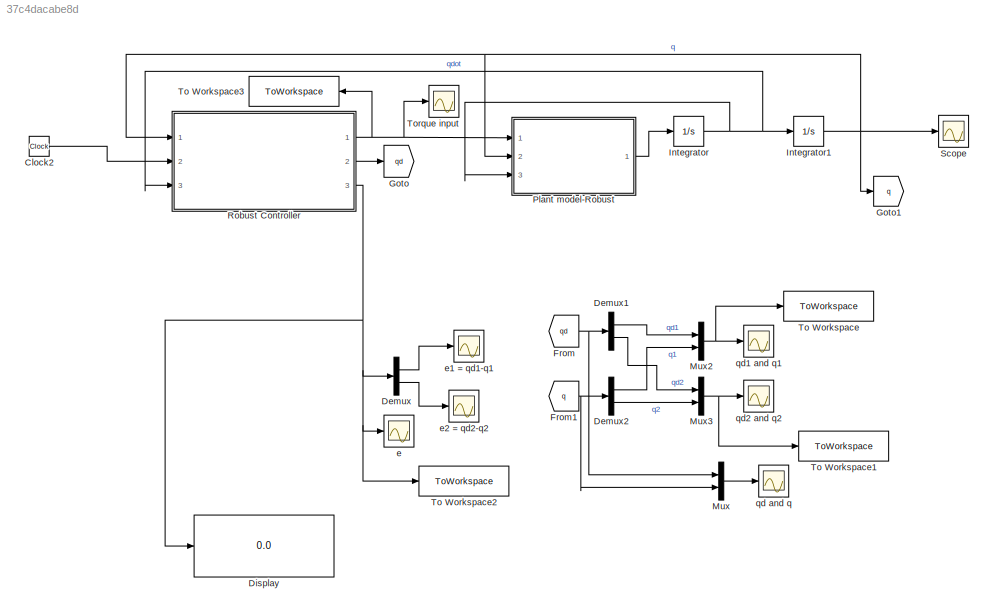
MODEL slx_37c4dacabe8d
KIND model
CONFIG AbsTol = auto
CONFIG EnableMultiTasking = off
CONFIG FixedStep = auto
CONFIG MaxStep = auto
CONFIG MinStep = auto
CONFIG RelTol = 1e-3
CONFIG SampleTimeConstraint = Unconstrained
CONFIG Solver = VariableStepAuto
CONFIG SolverName = VariableStepAuto
CONFIG StartTime = 0.0
CONFIG StopTime = 100
BLOCK [Clock] Clock2
BLOCK [Demux] Demux
  Outputs = 2
  Ports = [1, 2]
BLOCK [Demux] Demux1
  Outputs = 2
  Ports = [1, 2]
BLOCK [Demux] Demux2
  Outputs = 2
  Ports = [1, 2]
BLOCK [Display] Display
  Decimation = 1
  Ports = [1]
BLOCK [From] From
  GotoTag = qd
BLOCK [From] From1
  GotoTag = q
BLOCK [Goto] Goto
  GotoTag = qd
BLOCK [Goto] Goto1
  GotoTag = q
BLOCK [Integrator] Integrator
  InitialCondition = zeros(2,1)
  Ports = [1, 1]
BLOCK [Integrator] Integrator1
  InitialCondition = zeros(2,1)
  Ports = [1, 1]
BLOCK [Mux] Mux
  DisplayOption = bar
  Inputs = 2
  Ports = [2, 1]
BLOCK [Mux] Mux2
  DisplayOption = bar
  Inputs = 2
  Ports = [2, 1]
BLOCK [Mux] Mux3
  DisplayOption = bar
  Inputs = 2
  Ports = [2, 1]
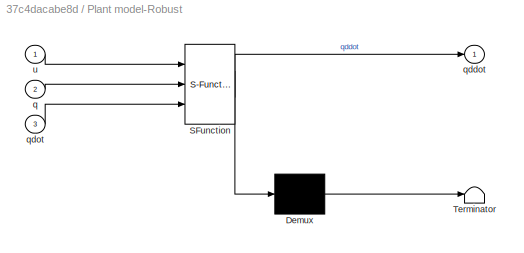
BLOCK [SubSystem] Plant model-Robust
  ErrorFcn = Stateflow.Translate.translate
  PermitHierarchicalResolution = ExplicitOnly
  Ports = [3, 1]
  RequestExecContextInheritance = off
  SFBlockType = MATLAB Function
  TreatAsAtomicUnit = on
BLOCK [Demux] Plant model-Robust/ Demux 
  Outputs = 1
  Ports = [1, 1]
BLOCK [S-Function] Plant model-Robust/ SFunction 
  EnableBusSupport = on
  FunctionName = sf_sfun
  PortCounts = [3 2]
  Ports = [3, 2]
  SFcnIsStateOwnerBlock = off
  SFunctionDeploymentMode = off
  Tag = Stateflow S-Function 2
BLOCK [Terminator] Plant model-Robust/ Terminator 
BLOCK [Inport] Plant model-Robust/q
  Port = 2
BLOCK [Outport] Plant model-Robust/qddot
BLOCK [Inport] Plant model-Robust/qdot
  Port = 3
BLOCK [Inport] Plant model-Robust/u
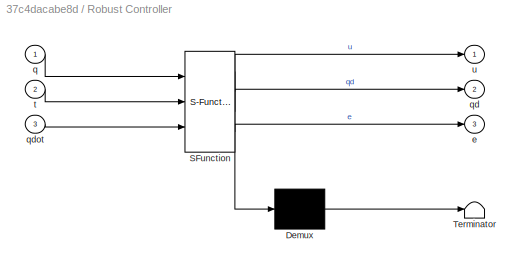
BLOCK [SubSystem] Robust Controller
  ErrorFcn = Stateflow.Translate.translate
  PermitHierarchicalResolution = ExplicitOnly
  Ports = [3, 3]
  RequestExecContextInheritance = off
  SFBlockType = MATLAB Function
  TreatAsAtomicUnit = on
BLOCK [Demux] Robust Controller/ Demux 
  Outputs = 1
  Ports = [1, 1]
BLOCK [S-Function] Robust Controller/ SFunction 
  EnableBusSupport = on
  FunctionName = sf_sfun
  PortCounts = [3 4]
  Ports = [3, 4]
  SFcnIsStateOwnerBlock = off
  SFunctionDeploymentMode = off
  Tag = Stateflow S-Function 1
BLOCK [Terminator] Robust Controller/ Terminator 
BLOCK [Outport] Robust Controller/e
  Port = 3
BLOCK [Inport] Robust Controller/q
BLOCK [Outport] Robust Controller/qd
  Port = 2
BLOCK [Inport] Robust Controller/qdot
  Port = 3
BLOCK [Inport] Robust Controller/t
  Port = 2
BLOCK [Outport] Robust Controller/u
BLOCK [Scope] Scope
  Floating = off
  NumInputPorts = 1
  Ports = [1]
  ScopeSpecificationString = Simulink.scopes.TimeScopeBlockCfg('CurrentConfiguration', extmgr.ConfigurationSet(extmgr.Configuration('Core','General UI',true),extmgr.Configuration('Core','Source UI',true),extmgr.Configuration('Sources','WiredSimulink',true),extmgr.Configuration('Visuals','Time Domain',true,'SerializedDisplays',{struct('MinYLimReal','-1.25166','MaxYLimReal','1.25236','YLabelReal','','MinYLimMag','0.00000','MaxY...<+1361ch>
BLOCK [ToWorkspace] To Workspace
  FixptAsFi = on
  MaxDataPoints = inf
  Ports = [1]
  SampleTime = -1
  SaveFormat = Timeseries
  VariableName = q1
BLOCK [ToWorkspace] To Workspace1
  FixptAsFi = on
  MaxDataPoints = inf
  Ports = [1]
  SampleTime = -1
  SaveFormat = Timeseries
  VariableName = q2
BLOCK [ToWorkspace] To Workspace2
  FixptAsFi = on
  MaxDataPoints = inf
  Ports = [1]
  SampleTime = -1
  SaveFormat = Timeseries
  VariableName = e
BLOCK [ToWorkspace] To Workspace3
  FixptAsFi = on
  MaxDataPoints = inf
  Ports = [1]
  SampleTime = -1
  SaveFormat = Timeseries
  VariableName = T
BLOCK [Scope] Torque input
  Floating = off
  NumInputPorts = 1
  Ports = [1]
  ScopeSpecificationString = Simulink.scopes.TimeScopeBlockCfg('CurrentConfiguration', extmgr.ConfigurationSet(extmgr.Configuration('Core','General UI',true),extmgr.Configuration('Core','Source UI',true),extmgr.Configuration('Sources','WiredSimulink',true,'DataLoggingVariableName','ScopeData3'),extmgr.Configuration('Visuals','Time Domain',true,'SerializedDisplays',{struct('MinYLimReal','-79.64572','MaxYLimReal','223.55909','Y...<+1816ch>
BLOCK [Scope] e
  Floating = off
  NumInputPorts = 1
  Ports = [1]
  ScopeSpecificationString = Simulink.scopes.TimeScopeBlockCfg('CurrentConfiguration', extmgr.ConfigurationSet(extmgr.Configuration('Core','General UI',true),extmgr.Configuration('Core','Source UI',true),extmgr.Configuration('Sources','WiredSimulink',true,'DataLoggingVariableName','ScopeData7'),extmgr.Configuration('Visuals','Time Domain',true,'SerializedDisplays',{struct('MinYLimReal','-0.21568','MaxYLimReal','1.13541','YLab...<+1811ch>
BLOCK [Scope] e1 = qd1-q1
  Floating = off
  NumInputPorts = 1
  Ports = [1]
  ScopeSpecificationString = Simulink.scopes.TimeScopeBlockCfg('CurrentConfiguration', extmgr.ConfigurationSet(extmgr.Configuration('Core','General UI',true),extmgr.Configuration('Core','Source UI',true),extmgr.Configuration('Sources','WiredSimulink',true,'DataLoggingVariableName','ScopeData1'),extmgr.Configuration('Visuals','Time Domain',true,'SerializedDisplays',{struct('MinYLimReal','-0.12956','MaxYLimReal','1.12584','YLab...<+1366ch>
BLOCK [Scope] e2 = qd2-q2
  Floating = off
  NumInputPorts = 1
  Ports = [1]
  ScopeSpecificationString = Simulink.scopes.TimeScopeBlockCfg('CurrentConfiguration', extmgr.ConfigurationSet(extmgr.Configuration('Core','General UI',true),extmgr.Configuration('Core','Source UI',true),extmgr.Configuration('Sources','WiredSimulink',true,'DataLoggingVariableName','ScopeData2'),extmgr.Configuration('Visuals','Time Domain',true,'SerializedDisplays',{struct('MinYLimReal','-0.21564','MaxYLimReal','1.13507','YLab...<+1366ch>
BLOCK [Scope] qd and q
  Floating = off
  NumInputPorts = 1
  Ports = [1]
  ScopeSpecificationString = Simulink.scopes.TimeScopeBlockCfg('CurrentConfiguration', extmgr.ConfigurationSet(extmgr.Configuration('Core','General UI',true),extmgr.Configuration('Core','Source UI',true),extmgr.Configuration('Sources','WiredSimulink',true,'DataLoggingVariableName','ScopeData6'),extmgr.Configuration('Visuals','Time Domain',true,'SerializedDisplays',{struct('MinYLimReal','-1.35527','MaxYLimReal','1.26286','YLab...<+1423ch>
BLOCK [Scope] qd1 and q1
  Floating = off
  NumInputPorts = 1
  Ports = [1]
  ScopeSpecificationString = Simulink.scopes.TimeScopeBlockCfg('CurrentConfiguration', extmgr.ConfigurationSet(extmgr.Configuration('Core','General UI',true,'FigureColor',[1 1 1]),extmgr.Configuration('Core','Source UI',true),extmgr.Configuration('Sources','WiredSimulink',true,'DataLoggingVariableName','ScopeData4'),extmgr.Configuration('Visuals','Time Domain',true,'SerializedDisplays',{struct('MinYLimReal','-1.25238','MaxYLi...<+1556ch>
BLOCK [Scope] qd2 and q2
  Floating = off
  NumInputPorts = 1
  Ports = [1]
  ScopeSpecificationString = Simulink.scopes.TimeScopeBlockCfg('CurrentConfiguration', extmgr.ConfigurationSet(extmgr.Configuration('Core','General UI',true),extmgr.Configuration('Core','Source UI',true),extmgr.Configuration('Sources','WiredSimulink',true,'DataLoggingVariableName','ScopeData5'),extmgr.Configuration('Visuals','Time Domain',true,'SerializedDisplays',{struct('MinYLimReal','-1.35513','MaxYLimReal','1.26168','YLab...<+1399ch>
LINE Clock2:1 -> Robust Controller:2
LINE Demux1:1 -> Mux2:1
LINE Demux1:2 -> Mux3:1
LINE Demux2:1 -> Mux2:2
LINE Demux2:2 -> Mux3:2
LINE Demux:1 -> e1 = qd1-q1:1
LINE Demux:2 -> e2 = qd2-q2:1
NET From1:1 -> Demux2:1, Mux:2
NET From:1 -> Demux1:1, Mux:1
NET Integrator1:1 -> Goto1:1, Plant model-Robust:2, Robust Controller:1, Scope:1
NET Integrator:1 -> Integrator1:1, Plant model-Robust:3, Robust Controller:3
NET Mux2:1 -> To Workspace:1, qd1 and q1:1
NET Mux3:1 -> To Workspace1:1, qd2 and q2:1
LINE Mux:1 -> qd and q:1
LINE Plant model-Robust:1 -> Integrator:1
NET Robust Controller:1 -> Plant model-Robust:1, To Workspace3:1, Torque input:1
LINE Robust Controller:2 -> Goto:1
NET Robust Controller:3 -> Demux:1, Display:1, To Workspace2:1, e:1
note: NET lines group one-source signal fan-out (src -> all destinations, sorted); 1:1 wires keep LINE
CHART Robust Controller states=1 transitions=1
  STATE_LABEL 'eML_blk_kernel()'
  STATE_LABEL "SCRIPT:\n%% Robust controller\n\nfunction [u,qd,e] = fcn(q,t,qdot)\n\nq1 = q(1);\nq2 = q(2);\n\nq1dot =qdot(1);\nq2dot = qdot(2);\n\n  \nqd = [cos(t) cos(2*t)]';\nqd_dot = [-sin(t) -2*sin(2*t)]';\nqd_ddot = [-cos(t) -4*cos(2*t)]';\n\ne = qd-q;\ne_dot =qd_dot - qdot;\n\n\n% Gain values\n\nalpha = 1.8; \nK = 42*eye(2);\n\nr = e_dot + alpha *e;\n \nY = [qd_ddot(1)+alpha*e_dot(1)   qd_ddot(2)+alpha*e_dot(2)      2*cos(q2)*(qd_d...<+663ch>"
CHART Plant model-Robust states=1 transitions=1
  STATE_LABEL 'eML_blk_kernel()'
  STATE_LABEL 'SCRIPT:\n%% Robot Plant model - Robust\nfunction qddot = fcn(u,q,qdot)\n\nq1 = q(1);\nq2 = q(2);\n\nq1dot =qdot(1);\nq2dot = qdot(2);\n\np1 = 3.473; %%% kg.m^2\np2 = 0.196; %%% kg.m^2\np3 = 0.242; %%% kg.m^2\n\nfd1 = 5.3; %%% N.m.sec\nfd2 = 1.1; %%% N.m.sec\n%%% Disturbance\n% Td1 = 0.35;   %%% N.m\n% Td2 = 0.35;   %%% N.m\n% %% No disturbance\nTd1 = 0;   %%% N.m\nTd2 = 0;   %%% N.m\n%%% Inertia matrix M(q)\nM =[p1+2*p3...<+409ch>'
CHART  states=0 transitions=0
CHART  states=0 transitions=0
